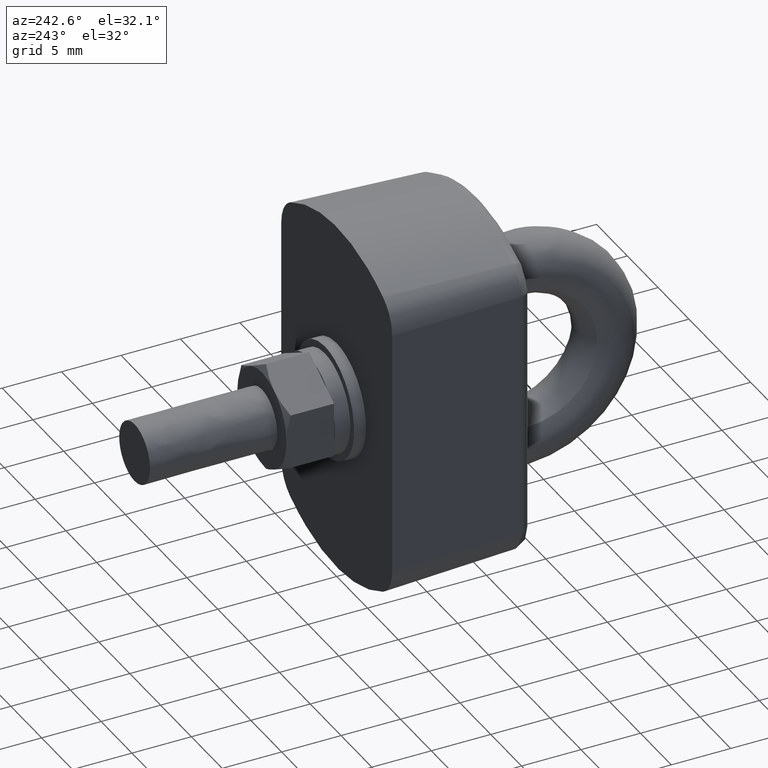
[diagram: clean part render]
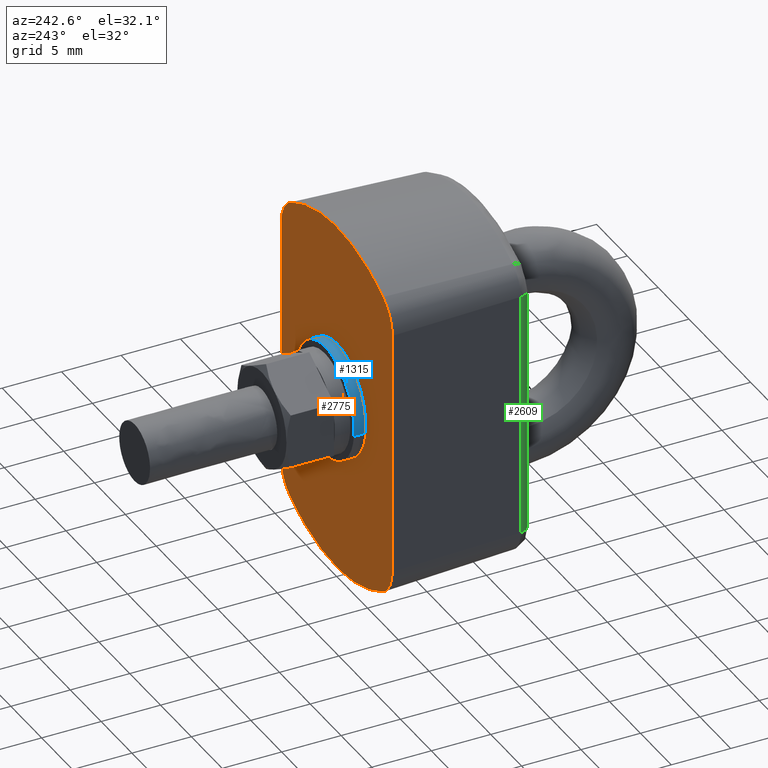
[diagram: same view with three faces highlighted in distinct colors, each labeled with its STEP entity id]
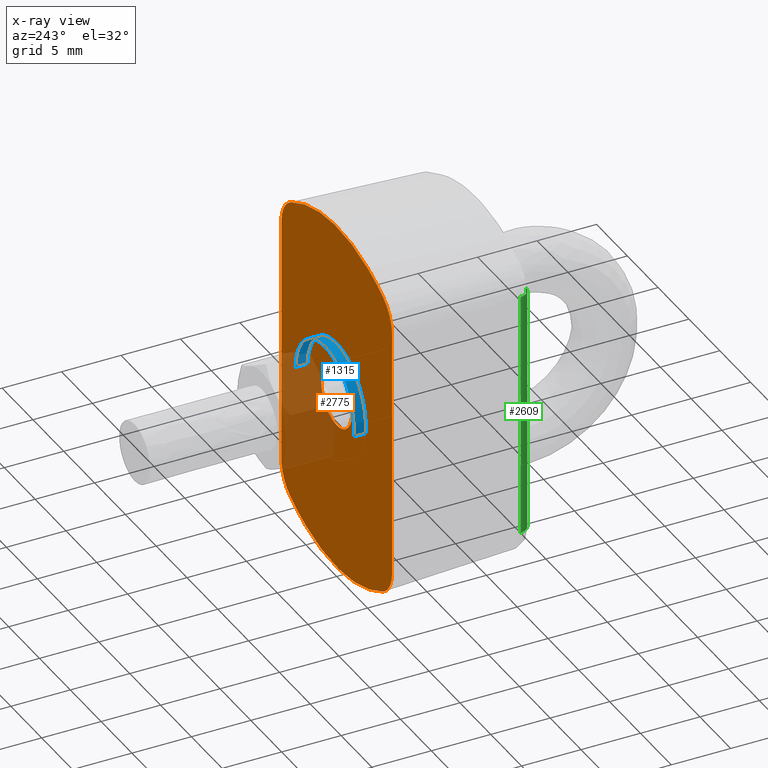
[diagram: x-ray of the same camera — body ghosted, the three highlighted faces saturated]
A machine part, auxiliary view with three faces highlighted in distinct colors.
The next image is the same camera in x-ray (body ghosted, the three faces saturated) — at least one of them is partly hidden behind the body in this view.
Their STEP definitions:

[orange] entity #2775 — the highlighted face is a freeform B-spline surface patch.
#1803=CARTESIAN_POINT('',(-0.834512754170460,2.356605283687767,-15.0));
#1804=VERTEX_POINT('',#1803);
#1810=CARTESIAN_POINT('',(2.500000000000000,0.0,-15.0));
#1811=VERTEX_POINT('',#1810);
#1812=CARTESIAN_POINT('',(2.500000000000000,0.0,-15.0));
#1813=CARTESIAN_POINT('',(2.500000000000000,2.500000000000000,-14.999999999999995));
#1814=CARTESIAN_POINT('',(0.0,2.500000000000000,-15.0));
#1815=CARTESIAN_POINT('',(-0.429576167623786,2.500000000000000,-14.999999999999995));
#1816=CARTESIAN_POINT('',(-0.834512754170460,2.356605283687767,-15.000000000000005));
#1824=(BOUNDED_CURVE()B_SPLINE_CURVE(2,(#1812,#1813,#1814,#1815,#1816),.UNSPECIFIED.,.F.,.U.)B_SPLINE_CURVE_WITH_KNOTS((3,2,3),(0.500000000000000,0.750000000000000,0.806714609685159),.UNSPECIFIED.)CURVE()GEOMETRIC_REPRESENTATION_ITEM()RATIONAL_B_SPLINE_CURVE((1.0,0.707106781186548,1.0,0.933554701662261,0.897256756609632))REPRESENTATION_ITEM(''));
#1825=EDGE_CURVE('',#1811,#1804,#1824,.T.);
#1827=CARTESIAN_POINT('',(-2.400474345612615,-0.698371617447104,-15.0));
#1828=VERTEX_POINT('',#1827);
#1829=CARTESIAN_POINT('',(-2.400474345612615,-0.698371617447104,-15.000000000000002));
#1830=CARTESIAN_POINT('',(-1.876325387326089,-2.500000000000000,-14.999999999999995));
#1831=CARTESIAN_POINT('',(0.0,-2.500000000000000,-15.0));
#1832=CARTESIAN_POINT('',(2.500000000000000,-2.500000000000000,-14.999999999999995));
#1833=CARTESIAN_POINT('',(2.500000000000000,0.0,-15.0));
#1841=(BOUNDED_CURVE()B_SPLINE_CURVE(2,(#1829,#1830,#1831,#1832,#1833),.UNSPECIFIED.,.F.,.U.)B_SPLINE_CURVE_WITH_KNOTS((3,2,3),(0.047576797457332,0.250000000000000,0.500000000000000),.UNSPECIFIED.)CURVE()GEOMETRIC_REPRESENTATION_ITEM()RATIONAL_B_SPLINE_CURVE((0.909735954993109,0.762846466579002,1.0,0.707106781186548,1.0))REPRESENTATION_ITEM(''));
#1842=EDGE_CURVE('',#1828,#1811,#1841,.T.);
#1908=CARTESIAN_POINT('',(-2.500000000000000,0.0,-15.0));
#1909=VERTEX_POINT('',#1908);
#1910=CARTESIAN_POINT('',(-2.500000000000000,0.0,-15.0));
#1911=CARTESIAN_POINT('',(-2.500000000000000,-0.356277560210721,-15.0));
#1912=CARTESIAN_POINT('',(-2.400474345612615,-0.698371617447104,-15.000000000000002));
#1920=(BOUNDED_CURVE()B_SPLINE_CURVE(2,(#1910,#1911,#1912),.UNSPECIFIED.,.F.,.U.)B_SPLINE_CURVE_WITH_KNOTS((3,3),(0.0,0.047576797457332),.UNSPECIFIED.)CURVE()GEOMETRIC_REPRESENTATION_ITEM()RATIONAL_B_SPLINE_CURVE((1.0,0.944260314607545,0.909735954993109))REPRESENTATION_ITEM(''));
#1921=EDGE_CURVE('',#1909,#1828,#1920,.T.);
#1923=CARTESIAN_POINT('',(-0.834512754170460,2.356605283687767,-15.000000000000005));
#1924=CARTESIAN_POINT('',(-2.499999999999999,1.766828812353050,-14.999999999999998));
#1925=CARTESIAN_POINT('',(-2.500000000000000,0.0,-15.0));
#1933=(BOUNDED_CURVE()B_SPLINE_CURVE(2,(#1923,#1924,#1925),.UNSPECIFIED.,.F.,.U.)B_SPLINE_CURVE_WITH_KNOTS((3,3),(0.806714609685159,1.0),.UNSPECIFIED.)CURVE()GEOMETRIC_REPRESENTATION_ITEM()RATIONAL_B_SPLINE_CURVE((0.897256756609632,0.773552079524287,1.0))REPRESENTATION_ITEM(''));
#1934=EDGE_CURVE('',#1804,#1909,#1933,.T.);
#2658=CARTESIAN_POINT('',(-16.498499106541839,9.899099035050103,-15.0));
#2659=CARTESIAN_POINT('',(16.498499642983621,9.899099035050103,-15.0));
#2660=CARTESIAN_POINT('',(-16.498499106541839,-9.899099517847681,-15.0));
#2661=CARTESIAN_POINT('',(16.498499642983621,-9.899099517847681,-15.0));
#2662=B_SPLINE_SURFACE_WITH_KNOTS('',1,1,((#2658,#2660),(#2659,#2661)),.UNSPECIFIED.,.F.,.F.,.U.,(2,2),(2,2),(0.0,32.996998749525460),(0.0,19.798198552897780),.UNSPECIFIED.);
#2663=CARTESIAN_POINT('',(10.392303999999999,8.999999154411849,-15.0));
#2664=VERTEX_POINT('',#2663);
#2665=CARTESIAN_POINT('',(-10.392303999999999,8.999999154411849,-15.0));
#2666=VERTEX_POINT('',#2665);
#2667=CARTESIAN_POINT('',(10.392303999999999,8.999999154411849,-15.0));
#2668=CARTESIAN_POINT('',(-10.392303999999999,8.999999154411849,-15.0));
#2669=QUASI_UNIFORM_CURVE('',1,(#2667,#2668),.UNSPECIFIED.,.F.,.U.);
#2670=EDGE_CURVE('',#2664,#2666,#2669,.T.);
#2671=ORIENTED_EDGE('',*,*,#2670,.F.);
#2672=CARTESIAN_POINT('',(12.990379743244141,7.499999851761920,-15.0));
#2673=VERTEX_POINT('',#2672);
#2674=CARTESIAN_POINT('',(12.990379743244141,7.499999851761920,-15.0));
#2675=CARTESIAN_POINT('',(12.124354248917250,8.999999154411857,-15.000000000000004));
#2676=CARTESIAN_POINT('',(10.392303999999999,8.999999154411855,-15.0));
#2684=(BOUNDED_CURVE()B_SPLINE_CURVE(2,(#2674,#2675,#2676),.UNSPECIFIED.,.F.,.U.)CURVE()GEOMETRIC_REPRESENTATION_ITEM()QUASI_UNIFORM_CURVE()RATIONAL_B_SPLINE_CURVE((1.0,0.866025412590827,1.0))REPRESENTATION_ITEM(''));
#2685=EDGE_CURVE('',#2673,#2664,#2684,.T.);
#2686=ORIENTED_EDGE('',*,*,#2685,.F.);
#2687=CARTESIAN_POINT('',(12.990379743244141,-7.499999851761920,-15.0));
#2688=VERTEX_POINT('',#2687);
#2689=CARTESIAN_POINT('',(12.990379743244141,-7.499999851761920,-15.0));
#2690=CARTESIAN_POINT('',(17.320507451543229,-2.602085E-015,-15.000000000000004));
#2691=CARTESIAN_POINT('',(12.990379743244141,7.499999851761920,-15.0));
#2699=(BOUNDED_CURVE()B_SPLINE_CURVE(2,(#2689,#2690,#2691),.UNSPECIFIED.,.F.,.U.)CURVE()GEOMETRIC_REPRESENTATION_ITEM()QUASI_UNIFORM_CURVE()RATIONAL_B_SPLINE_CURVE((1.0,0.866025386171661,1.0))REPRESENTATION_ITEM(''));
#2700=EDGE_CURVE('',#2688,#2673,#2699,.T.);
#2701=ORIENTED_EDGE('',*,*,#2700,.F.);
#2702=CARTESIAN_POINT('',(10.392303999999999,-8.999999154411849,-15.0));
#2703=VERTEX_POINT('',#2702);
#2704=CARTESIAN_POINT('',(10.392303999999999,-8.999999154411855,-15.0));
#2705=CARTESIAN_POINT('',(12.124354248917250,-8.999999154411857,-15.000000000000004));
#2706=CARTESIAN_POINT('',(12.990379743244141,-7.499999851761920,-15.0));
#2714=(BOUNDED_CURVE()B_SPLINE_CURVE(2,(#2704,#2705,#2706),.UNSPECIFIED.,.F.,.U.)CURVE()GEOMETRIC_REPRESENTATION_ITEM()QUASI_UNIFORM_CURVE()RATIONAL_B_SPLINE_CURVE((1.0,0.866025412590827,1.0))REPRESENTATION_ITEM(''));
#2715=EDGE_CURVE('',#2703,#2688,#2714,.T.);
#2716=ORIENTED_EDGE('',*,*,#2715,.F.);
#2717=CARTESIAN_POINT('',(-10.392303999999999,-8.999999154411849,-15.0));
#2718=VERTEX_POINT('',#2717);
#2719=CARTESIAN_POINT('',(-10.392303999999999,-8.999999154411849,-15.0));
#2720=CARTESIAN_POINT('',(10.392303999999999,-8.999999154411849,-15.0));
#2721=QUASI_UNIFORM_CURVE('',1,(#2719,#2720),.UNSPECIFIED.,.F.,.U.);
#2722=EDGE_CURVE('',#2718,#2703,#2721,.T.);
#2723=ORIENTED_EDGE('',*,*,#2722,.F.);
#2724=CARTESIAN_POINT('',(-12.990379743244141,-7.499999851761930,-15.0));
#2725=VERTEX_POINT('',#2724);
#2726=CARTESIAN_POINT('',(-12.990379743244141,-7.499999851761930,-15.0));
#2727=CARTESIAN_POINT('',(-12.124354248917241,-8.999999154411855,-15.000000000000004));
#2728=CARTESIAN_POINT('',(-10.392303999999999,-8.999999154411855,-15.0));
#2736=(BOUNDED_CURVE()B_SPLINE_CURVE(2,(#2726,#2727,#2728),.UNSPECIFIED.,.F.,.U.)CURVE()GEOMETRIC_REPRESENTATION_ITEM()QUASI_UNIFORM_CURVE()RATIONAL_B_SPLINE_CURVE((1.0,0.866025412590828,1.0))REPRESENTATION_ITEM(''));
#2737=EDGE_CURVE('',#2725,#2718,#2736,.T.);
#2738=ORIENTED_EDGE('',*,*,#2737,.F.);
#2739=CARTESIAN_POINT('',(-12.990379743244141,7.499999851761930,-15.0));
#2740=VERTEX_POINT('',#2739);
#2741=CARTESIAN_POINT('',(-12.990379743244141,7.499999851761930,-15.0));
#2742=CARTESIAN_POINT('',(-17.320507451543218,4.336809E-015,-15.0));
#2743=CARTESIAN_POINT('',(-12.990379743244141,-7.499999851761930,-15.0));
#2751=(BOUNDED_CURVE()B_SPLINE_CURVE(2,(#2741,#2742,#2743),.UNSPECIFIED.,.F.,.U.)CURVE()GEOMETRIC_REPRESENTATION_ITEM()QUASI_UNIFORM_CURVE()RATIONAL_B_SPLINE_CURVE((1.0,0.866025386171661,1.0))REPRESENTATION_ITEM(''));
#2752=EDGE_CURVE('',#2740,#2725,#2751,.T.);
#2753=ORIENTED_EDGE('',*,*,#2752,.F.);
#2754=CARTESIAN_POINT('',(-10.392303999999999,8.999999154411855,-15.0));
#2755=CARTESIAN_POINT('',(-12.124354248917241,8.999999154411855,-15.000000000000004));
#2756=CARTESIAN_POINT('',(-12.990379743244141,7.499999851761930,-15.0));
#2764=(BOUNDED_CURVE()B_SPLINE_CURVE(2,(#2754,#2755,#2756),.UNSPECIFIED.,.F.,.U.)CURVE()GEOMETRIC_REPRESENTATION_ITEM()QUASI_UNIFORM_CURVE()RATIONAL_B_SPLINE_CURVE((1.0,0.866025412590828,1.0))REPRESENTATION_ITEM(''));
#2765=EDGE_CURVE('',#2666,#2740,#2764,.T.);
#2766=ORIENTED_EDGE('',*,*,#2765,.F.);
#2767=EDGE_LOOP('',(#2671,#2686,#2701,#2716,#2723,#2738,#2753,#2766));
#2768=FACE_OUTER_BOUND('',#2767,.T.);
#2769=ORIENTED_EDGE('',*,*,#1825,.T.);
#2770=ORIENTED_EDGE('',*,*,#1934,.T.);
#2771=ORIENTED_EDGE('',*,*,#1921,.T.);
#2772=ORIENTED_EDGE('',*,*,#1842,.T.);
#2773=EDGE_LOOP('',(#2769,#2770,#2771,#2772));
#2774=FACE_BOUND('',#2773,.T.);
#2775=ADVANCED_FACE('',(#2768,#2774),#2662,.T.);

[blue] entity #1315 — the highlighted face is a freeform B-spline surface patch.
#1213=CARTESIAN_POINT('',(0.560662614619603,-4.716795250227415,-14.974999999999998));
#1214=CARTESIAN_POINT('',(0.425669961030394,-4.732841173380876,-14.974999999999998));
#1215=CARTESIAN_POINT('',(0.289980562790571,-4.741140292503867,-14.975000000000000));
#1216=CARTESIAN_POINT('',(-4.451159729713296,-5.031120855294438,-14.975000000000001));
#1217=CARTESIAN_POINT('',(-4.741140292503867,-0.289980562790571,-14.975000000000000));
#1218=CARTESIAN_POINT('',(-5.031120855294438,4.451159729713296,-14.975000000000001));
#1219=CARTESIAN_POINT('',(-0.289980562790571,4.741140292503867,-14.975000000000000));
#1220=CARTESIAN_POINT('',(0.560662614619603,-4.716795250227415,-16.025625000000009));
#1221=CARTESIAN_POINT('',(0.425669961030394,-4.732841173380876,-16.025625000000005));
#1222=CARTESIAN_POINT('',(0.289980562790571,-4.741140292503867,-16.025625000000002));
#1223=CARTESIAN_POINT('',(-4.451159729713296,-5.031120855294438,-16.025625000000005));
#1224=CARTESIAN_POINT('',(-4.741140292503867,-0.289980562790571,-16.025625000000002));
#1225=CARTESIAN_POINT('',(-5.031120855294438,4.451159729713296,-16.025625000000005));
#1226=CARTESIAN_POINT('',(-0.289980562790571,4.741140292503867,-16.025625000000002));
#1234=(BOUNDED_SURFACE()B_SPLINE_SURFACE(2,1,((#1213,#1220),(#1214,#1221),(#1215,#1222),(#1216,#1223),(#1217,#1224),(#1218,#1225),(#1219,#1226)),.UNSPECIFIED.,.F.,.F.,.U.)B_SPLINE_SURFACE_WITH_KNOTS((3,2,2,3),(2,2),(0.0,0.314802307403553,8.184859992492356,16.054917677581159),(0.0,1.0),.UNSPECIFIED.)GEOMETRIC_REPRESENTATION_ITEM()RATIONAL_B_SPLINE_SURFACE(((0.977505800795127,0.977505800795127),(0.988284271247462,0.988284271247462),(1.0,1.0),(0.707106781186548,0.707106781186548),(1.0,1.0),(0.707106781186548,0.707106781186548),(1.0,1.0)))REPRESENTATION_ITEM('')SURFACE());
#1235=CARTESIAN_POINT('',(0.560662614655423,-4.716795250223158,-16.0));
#1236=VERTEX_POINT('',#1235);
#1237=CARTESIAN_POINT('',(-4.750000000000000,0.0,-16.0));
#1238=VERTEX_POINT('',#1237);
#1239=CARTESIAN_POINT('',(0.560662614655423,-4.716795250223159,-15.999999999999996));
#1240=CARTESIAN_POINT('',(0.281314568382772,-4.750000000000000,-15.999999999999998));
#1241=CARTESIAN_POINT('',(0.0,-4.750000000000000,-16.0));
#1242=CARTESIAN_POINT('',(-4.750000000000000,-4.750000000000000,-15.999999999999998));
#1243=CARTESIAN_POINT('',(-4.750000000000000,0.0,-16.0));
#1251=(BOUNDED_CURVE()B_SPLINE_CURVE(2,(#1239,#1240,#1241,#1242,#1243),.UNSPECIFIED.,.F.,.U.)B_SPLINE_CURVE_WITH_KNOTS((3,2,3),(0.229562473513077,0.250000000000000,0.500000000000000),.UNSPECIFIED.)CURVE()GEOMETRIC_REPRESENTATION_ITEM()RATIONAL_B_SPLINE_CURVE((0.956026754182855,0.976055948330640,1.0,0.707106781186548,1.0))REPRESENTATION_ITEM(''));
#1252=EDGE_CURVE('',#1236,#1238,#1251,.T.);
#1253=ORIENTED_EDGE('',*,*,#1252,.F.);
#1254=CARTESIAN_POINT('',(0.560662614655423,-4.716795250223157,-15.0));
#1255=VERTEX_POINT('',#1254);
#1256=CARTESIAN_POINT('',(0.560662614655423,-4.716795250223157,-15.0));
#1257=CARTESIAN_POINT('',(0.560662614655423,-4.716795250223158,-16.0));
#1258=QUASI_UNIFORM_CURVE('',1,(#1256,#1257),.UNSPECIFIED.,.F.,.U.);
#1259=EDGE_CURVE('',#1255,#1236,#1258,.T.);
#1260=ORIENTED_EDGE('',*,*,#1259,.F.);
#1261=CARTESIAN_POINT('',(-4.750000000000000,0.0,-15.0));
#1262=VERTEX_POINT('',#1261);
#1263=CARTESIAN_POINT('',(0.560662614655423,-4.716795250223157,-15.000000000000004));
#1264=CARTESIAN_POINT('',(0.281314568382773,-4.750000000000000,-15.0));
#1265=CARTESIAN_POINT('',(0.0,-4.750000000000000,-15.0));
#1266=CARTESIAN_POINT('',(-4.750000000000000,-4.750000000000000,-14.999999999999995));
#1267=CARTESIAN_POINT('',(-4.750000000000000,0.0,-15.0));
#1275=(BOUNDED_CURVE()B_SPLINE_CURVE(2,(#1263,#1264,#1265,#1266,#1267),.UNSPECIFIED.,.F.,.U.)B_SPLINE_CURVE_WITH_KNOTS((3,2,3),(0.229562473513077,0.250000000000000,0.500000000000000),.UNSPECIFIED.)CURVE()GEOMETRIC_REPRESENTATION_ITEM()RATIONAL_B_SPLINE_CURVE((0.956026754182854,0.976055948330640,1.0,0.707106781186548,1.0))REPRESENTATION_ITEM(''));
#1276=EDGE_CURVE('',#1255,#1262,#1275,.T.);
#1277=ORIENTED_EDGE('',*,*,#1276,.T.);
#1278=CARTESIAN_POINT('',(-0.289980562837249,4.741140292501012,-15.0));
#1279=VERTEX_POINT('',#1278);
#1280=CARTESIAN_POINT('',(-4.750000000000000,0.0,-15.0));
#1281=CARTESIAN_POINT('',(-4.750000000000001,4.468353817713878,-15.000000000000002));
#1282=CARTESIAN_POINT('',(-0.289980562837249,4.741140292501011,-14.999999999999998));
#1290=(BOUNDED_CURVE()B_SPLINE_CURVE(2,(#1280,#1281,#1282),.UNSPECIFIED.,.F.,.U.)B_SPLINE_CURVE_WITH_KNOTS((3,3),(0.500000000000000,0.739332962238570),.UNSPECIFIED.)CURVE()GEOMETRIC_REPRESENTATION_ITEM()RATIONAL_B_SPLINE_CURVE((1.0,0.719603993287147,0.976072041665918))REPRESENTATION_ITEM(''));
#1291=EDGE_CURVE('',#1262,#1279,#1290,.T.);
#1292=ORIENTED_EDGE('',*,*,#1291,.T.);
#1293=CARTESIAN_POINT('',(-0.289980562837249,4.741140292501012,-16.0));
#1294=VERTEX_POINT('',#1293);
#1295=CARTESIAN_POINT('',(-0.289980562837249,4.741140292501012,-15.0));
#1296=CARTESIAN_POINT('',(-0.289980562837249,4.741140292501012,-16.0));
#1297=QUASI_UNIFORM_CURVE('',1,(#1295,#1296),.UNSPECIFIED.,.F.,.U.);
#1298=EDGE_CURVE('',#1279,#1294,#1297,.T.);
#1299=ORIENTED_EDGE('',*,*,#1298,.T.);
#1300=CARTESIAN_POINT('',(-4.750000000000000,0.0,-16.0));
#1301=CARTESIAN_POINT('',(-4.750000000000001,4.468353817713878,-16.000000000000004));
#1302=CARTESIAN_POINT('',(-0.289980562837249,4.741140292501011,-16.0));
#1310=(BOUNDED_CURVE()B_SPLINE_CURVE(2,(#1300,#1301,#1302),.UNSPECIFIED.,.F.,.U.)B_SPLINE_CURVE_WITH_KNOTS((3,3),(0.500000000000000,0.739332962238570),.UNSPECIFIED.)CURVE()GEOMETRIC_REPRESENTATION_ITEM()RATIONAL_B_SPLINE_CURVE((1.0,0.719603993287147,0.976072041665918))REPRESENTATION_ITEM(''));
#1311=EDGE_CURVE('',#1238,#1294,#1310,.T.);
#1312=ORIENTED_EDGE('',*,*,#1311,.F.);
#1313=EDGE_LOOP('',(#1253,#1260,#1277,#1292,#1299,#1312));
#1314=FACE_OUTER_BOUND('',#1313,.T.);
#1315=ADVANCED_FACE('',(#1314),#1234,.T.);

[green] entity #2609 — the highlighted face is a freeform B-spline surface patch.
#2454=CARTESIAN_POINT('',(10.392303999999999,-7.540798920012490,-3.0));
#2455=VERTEX_POINT('',#2454);
#2456=CARTESIAN_POINT('',(10.392303999999999,-8.539931996033269,-3.958369525570390));
#2457=VERTEX_POINT('',#2456);
#2458=CARTESIAN_POINT('',(10.392303999999999,-7.540798920012490,-3.0));
#2459=CARTESIAN_POINT('',(10.392303999999999,-8.500000000000005,-3.0));
#2460=CARTESIAN_POINT('',(10.392303999999999,-8.539931996033280,-3.958369525570389));
#2468=(BOUNDED_CURVE()B_SPLINE_CURVE(2,(#2458,#2459,#2460),.UNSPECIFIED.,.F.,.U.)CURVE()GEOMETRIC_REPRESENTATION_ITEM()QUASI_UNIFORM_CURVE()RATIONAL_B_SPLINE_CURVE((1.0,0.721675299019445,1.0))REPRESENTATION_ITEM(''));
#2469=EDGE_CURVE('',#2455,#2457,#2468,.T.);
#2565=CARTESIAN_POINT('',(10.911919200000000,-7.532072384514107,-3.000038076935829));
#2566=CARTESIAN_POINT('',(-10.924909580000000,-7.532072384514107,-3.000038076935829));
#2567=CARTESIAN_POINT('',(10.911919200000002,-8.549641030114831,-2.991157889897642));
#2568=CARTESIAN_POINT('',(-10.924909580000001,-8.549641030114831,-2.991157889897642));
#2569=CARTESIAN_POINT('',(10.911919200000000,-8.540760843076662,-4.008726535498365));
#2570=CARTESIAN_POINT('',(-10.924909580000000,-8.540760843076662,-4.008726535498365));
#2578=(BOUNDED_SURFACE()B_SPLINE_SURFACE(1,2,((#2565,#2567,#2569),(#2566,#2568,#2570)),.UNSPECIFIED.,.F.,.F.,.U.)B_SPLINE_SURFACE_WITH_KNOTS((2,2),(3,3),(0.0,21.836828780000008),(0.0,1.0),.UNSPECIFIED.)GEOMETRIC_REPRESENTATION_ITEM()RATIONAL_B_SPLINE_SURFACE(((1.0,0.700909264299851,1.0),(1.0,0.700909264299851,1.0)))REPRESENTATION_ITEM('')SURFACE());
#2579=CARTESIAN_POINT('',(-10.392303999999999,-7.540798920012480,-3.0));
#2580=VERTEX_POINT('',#2579);
#2581=CARTESIAN_POINT('',(-10.392303999999999,-8.539931996033269,-3.958369525570390));
#2582=VERTEX_POINT('',#2581);
#2583=CARTESIAN_POINT('',(-10.392303999999999,-7.540798920012480,-3.0));
#2584=CARTESIAN_POINT('',(-10.392303999999999,-8.499999999999995,-3.0));
#2585=CARTESIAN_POINT('',(-10.392303999999999,-8.539931996033271,-3.958369525570389));
#2593=(BOUNDED_CURVE()B_SPLINE_CURVE(2,(#2583,#2584,#2585),.UNSPECIFIED.,.F.,.U.)CURVE()GEOMETRIC_REPRESENTATION_ITEM()QUASI_UNIFORM_CURVE()RATIONAL_B_SPLINE_CURVE((1.0,0.721675299019445,1.0))REPRESENTATION_ITEM(''));
#2594=EDGE_CURVE('',#2580,#2582,#2593,.T.);
#2595=ORIENTED_EDGE('',*,*,#2594,.T.);
#2596=CARTESIAN_POINT('',(10.392303999999999,-8.539931996033269,-3.958369525570390));
#2597=CARTESIAN_POINT('',(-10.392303999999999,-8.539931996033269,-3.958369525570390));
#2598=QUASI_UNIFORM_CURVE('',1,(#2596,#2597),.UNSPECIFIED.,.F.,.U.);
#2599=EDGE_CURVE('',#2457,#2582,#2598,.T.);
#2600=ORIENTED_EDGE('',*,*,#2599,.F.);
#2601=ORIENTED_EDGE('',*,*,#2469,.F.);
#2602=CARTESIAN_POINT('',(-10.392303999999999,-7.540798920012480,-3.0));
#2603=CARTESIAN_POINT('',(10.392303999999999,-7.540798920012490,-3.0));
#2604=QUASI_UNIFORM_CURVE('',1,(#2602,#2603),.UNSPECIFIED.,.F.,.U.);
#2605=EDGE_CURVE('',#2580,#2455,#2604,.T.);
#2606=ORIENTED_EDGE('',*,*,#2605,.F.);
#2607=EDGE_LOOP('',(#2595,#2600,#2601,#2606));
#2608=FACE_OUTER_BOUND('',#2607,.T.);
#2609=ADVANCED_FACE('',(#2608),#2578,.T.);